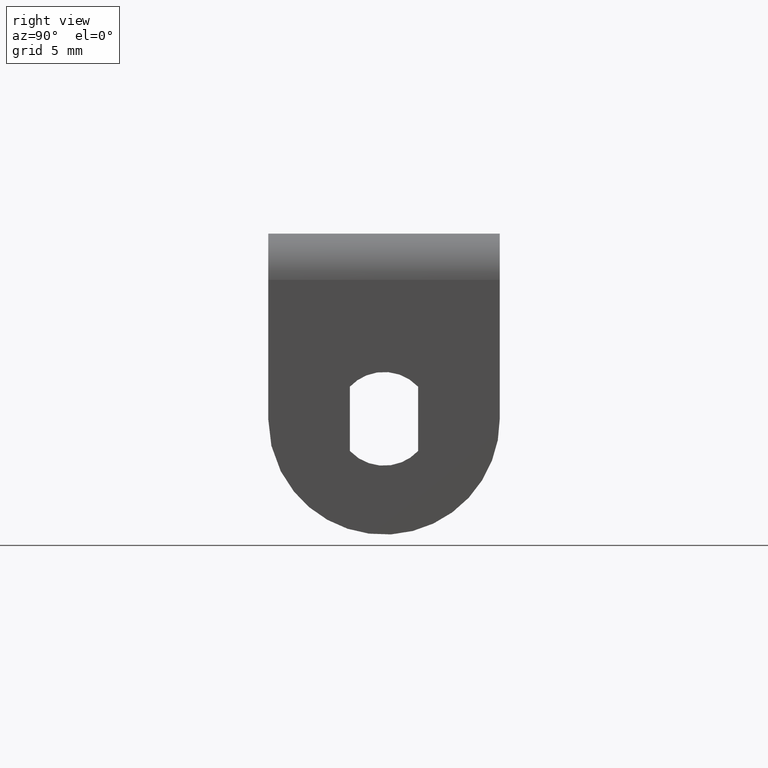
[diagram: clean part render]
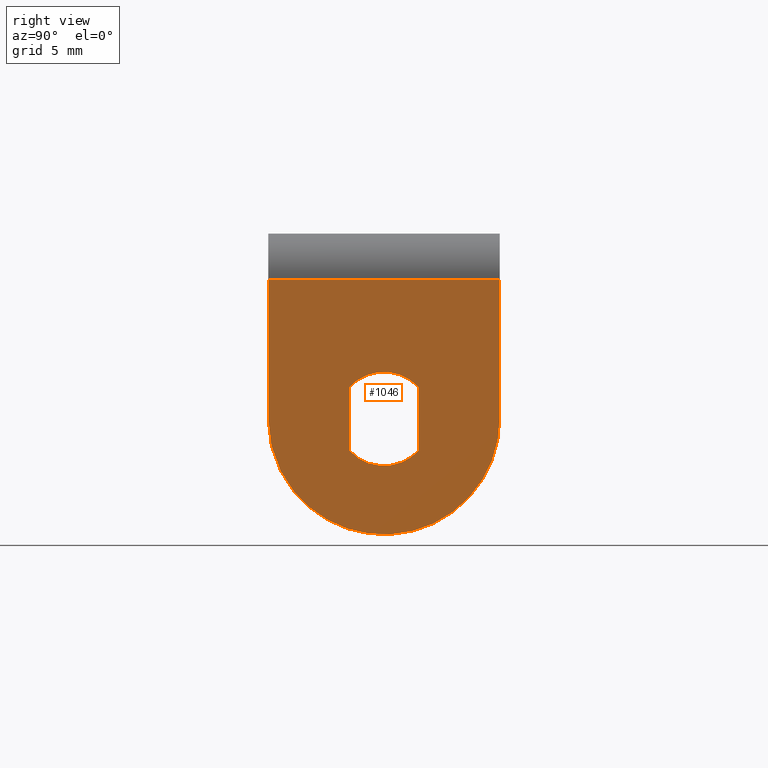
[diagram: same view with one face highlighted and labeled with its STEP entity id]
A machine part, right view. The second image highlights one B-rep face of the part: STEP entity #1046.
In plain terms, the highlighted face is a freeform B-spline surface patch.
Its self-contained STEP definition (entity closure, byte-faithful):
#659=CARTESIAN_POINT('',(0.0,-1.475000000000080,1.387443692551104));
#660=VERTEX_POINT('',#659);
#666=CARTESIAN_POINT('',(0.0,-1.475000000000080,-1.387443692551102));
#667=VERTEX_POINT('',#666);
#668=CARTESIAN_POINT('',(0.0,-1.475000000000080,1.387443692551104));
#669=CARTESIAN_POINT('',(0.0,-1.475000000000080,-1.387443692551102));
#670=QUASI_UNIFORM_CURVE('',1,(#668,#669),.UNSPECIFIED.,.F.,.U.);
#671=EDGE_CURVE('',#660,#667,#670,.T.);
#696=CARTESIAN_POINT('',(0.0,1.474999999999910,1.387443692550988));
#697=VERTEX_POINT('',#696);
#703=CARTESIAN_POINT('',(0.0,1.474999999999910,1.387443692550988));
#704=CARTESIAN_POINT('',(0.0,1.380670494113556,1.487754335689962));
#705=CARTESIAN_POINT('',(0.0,1.217201352177897,1.629348577602691));
#706=CARTESIAN_POINT('',(0.0,0.902101189674611,1.824571535563073));
#707=CARTESIAN_POINT('',(0.0,0.572594252538537,1.957131040315841));
#708=CARTESIAN_POINT('',(0.0,0.198452724673971,2.024606629939703));
#709=CARTESIAN_POINT('',(0.0,-0.138136115437624,2.028900425362896));
#710=CARTESIAN_POINT('',(0.0,-0.420049765506036,1.987262036304930));
#711=CARTESIAN_POINT('',(0.0,-0.726434035424657,1.899006509463014));
#712=CARTESIAN_POINT('',(0.0,-1.087573258639210,1.731872807022510));
#713=CARTESIAN_POINT('',(0.0,-1.345326968082001,1.525406492633100));
#714=CARTESIAN_POINT('',(0.0,-1.475000000000080,1.387443692551104));
#715=B_SPLINE_CURVE_WITH_KNOTS('',3,(#703,#704,#705,#706,#707,#708,#709,#710,#711,#712,#713,#714),.UNSPECIFIED.,.F.,.U.,(4,1,1,1,1,1,1,1,1,4),(0.000000022159004,0.413086376242160,0.645452178341382,1.110186247197694,1.471639036251949,1.781447523393023,2.117090264590202,2.323634236006428,2.736730945053143,3.304727559538897),.UNSPECIFIED.);
#716=EDGE_CURVE('',#697,#660,#715,.T.);
#728=CARTESIAN_POINT('',(0.0,1.474999999999910,-1.387443692551102));
#729=VERTEX_POINT('',#728);
#735=CARTESIAN_POINT('',(0.0,1.474999999999910,-1.387443692551102));
#736=CARTESIAN_POINT('',(0.0,1.474999999999910,1.387443692550988));
#737=QUASI_UNIFORM_CURVE('',1,(#735,#736),.UNSPECIFIED.,.F.,.U.);
#738=EDGE_CURVE('',#729,#697,#737,.T.);
#760=CARTESIAN_POINT('',(0.0,-1.475000000000080,-1.387443692551102));
#761=CARTESIAN_POINT('',(0.0,-1.327668950976536,-1.544252504671867));
#762=CARTESIAN_POINT('',(0.0,-1.030702136118029,-1.772856329635306));
#763=CARTESIAN_POINT('',(0.0,-0.572592008330545,-1.957128823236188));
#764=CARTESIAN_POINT('',(0.0,-0.198452896217103,-2.024607567414855));
#765=CARTESIAN_POINT('',(0.0,0.155397433907739,-2.029124348193056));
#766=CARTESIAN_POINT('',(0.0,0.479755719843479,-1.976988075974650));
#767=CARTESIAN_POINT('',(0.0,0.823125155314828,-1.861251939156080));
#768=CARTESIAN_POINT('',(0.0,1.157670297451027,-1.679690964550267));
#769=CARTESIAN_POINT('',(0.0,1.374775347015647,-1.494023766857396));
#770=CARTESIAN_POINT('',(0.0,1.474999999999910,-1.387443692551102));
#771=B_SPLINE_CURVE_WITH_KNOTS('',3,(#760,#761,#762,#763,#764,#765,#766,#767,#768,#769,#770),.UNSPECIFIED.,.F.,.U.,(4,1,1,1,1,1,1,1,4),(0.000000022158772,0.645452178341201,1.110186247197551,1.471639036251836,1.781447523392933,2.168723287016878,2.452727092234080,2.865822358041922,3.304727559538871),.UNSPECIFIED.);
#772=EDGE_CURVE('',#667,#729,#771,.T.);
#832=CARTESIAN_POINT('',(0.0,4.999999999999890,6.0));
#833=VERTEX_POINT('',#832);
#854=CARTESIAN_POINT('',(0.0,-5.000000000000290,6.0));
#855=VERTEX_POINT('',#854);
#869=CARTESIAN_POINT('',(0.0,4.999999999999890,6.0));
#870=CARTESIAN_POINT('',(0.0,-5.000000000000290,6.0));
#871=QUASI_UNIFORM_CURVE('',1,(#869,#870),.UNSPECIFIED.,.F.,.U.);
#872=EDGE_CURVE('',#833,#855,#871,.T.);
#912=CARTESIAN_POINT('',(0.0,4.999999999999920,0.000000872664625));
#913=VERTEX_POINT('',#912);
#919=CARTESIAN_POINT('',(0.0,-5.000000000000290,-3.061516E-016));
#920=VERTEX_POINT('',#919);
#921=CARTESIAN_POINT('',(0.0,-5.000000000000290,-3.061516E-016));
#922=CARTESIAN_POINT('',(0.0,-5.000009099920339,-0.235207009468813));
#923=CARTESIAN_POINT('',(0.0,-4.966025920176181,-0.715849755872234));
#924=CARTESIAN_POINT('',(0.0,-4.815249924251384,-1.407144258192211));
#925=CARTESIAN_POINT('',(0.0,-4.558113566024446,-2.098893395265583));
#926=CARTESIAN_POINT('',(0.0,-4.157455357743960,-2.826925668638566));
#927=CARTESIAN_POINT('',(0.0,-3.657223545374245,-3.440287277969798));
#928=CARTESIAN_POINT('',(0.0,-3.107751604601202,-3.932125083656868));
#929=CARTESIAN_POINT('',(0.0,-2.528416142578831,-4.337529861590435));
#930=CARTESIAN_POINT('',(0.0,-1.790072712439315,-4.697897794141976));
#931=CARTESIAN_POINT('',(0.0,-0.890384551534412,-4.949861066081613));
#932=CARTESIAN_POINT('',(0.0,-0.040628222281704,-5.023029462005174));
#933=CARTESIAN_POINT('',(0.0,0.735890038700142,-4.960924257601769));
#934=CARTESIAN_POINT('',(0.0,1.326737728941753,-4.832044724629513));
#935=CARTESIAN_POINT('',(0.0,1.908181639721170,-4.634006763696986));
#936=CARTESIAN_POINT('',(0.0,2.491199262031098,-4.356086544625296));
#937=CARTESIAN_POINT('',(0.0,3.061398746851376,-3.972542066756692));
#938=CARTESIAN_POINT('',(0.0,3.551202844321763,-3.536748502593613));
#939=CARTESIAN_POINT('',(0.0,3.931273343211799,-3.106915774809114));
#940=CARTESIAN_POINT('',(0.0,4.295277171817269,-2.586707716696024));
#941=CARTESIAN_POINT('',(0.0,4.570857797496823,-2.059506170925269));
#942=CARTESIAN_POINT('',(0.0,4.802744127919879,-1.435679069689365));
#943=CARTESIAN_POINT('',(0.0,4.959117961496081,-0.777209751555647));
#944=CARTESIAN_POINT('',(0.0,5.000016150060175,-0.265888778238019));
#945=CARTESIAN_POINT('',(0.0,4.999999999999920,0.000000872664625));
#946=B_SPLINE_CURVE_WITH_KNOTS('',3,(#921,#922,#923,#924,#925,#926,#927,#928,#929,#930,#931,#932,#933,#934,#935,#936,#937,#938,#939,#940,#941,#942,#943,#944,#945),.UNSPECIFIED.,.F.,.U.,(4,1,1,1,1,1,1,1,1,1,1,1,1,1,1,1,1,1,1,1,1,1,4),(0.000000041431571,0.705621012969976,1.441937853951801,2.116896966214164,2.914569094510604,3.927005285180279,4.479232491351210,5.123518012526954,6.043892555297452,6.933603155984899,7.915354075980583,8.590310674681671,9.265267720908264,9.725457580433311,10.431092105586661,11.198067297053161,11.780983722337281,12.394584247774549,12.916138187023270,13.683131451389080,14.174007337957260,14.910321362527901,15.707988781856320),.UNSPECIFIED.);
#947=EDGE_CURVE('',#920,#913,#946,.T.);
#971=CARTESIAN_POINT('',(0.0,-5.000000000000290,6.0));
#972=CARTESIAN_POINT('',(0.0,-5.000000000000290,-3.061516E-016));
#973=QUASI_UNIFORM_CURVE('',1,(#971,#972),.UNSPECIFIED.,.F.,.U.);
#974=EDGE_CURVE('',#855,#920,#973,.T.);
#1019=CARTESIAN_POINT('',(0.0,4.999999999999920,0.000000872664625));
#1020=CARTESIAN_POINT('',(0.0,4.999999999999890,6.0));
#1021=QUASI_UNIFORM_CURVE('',1,(#1019,#1020),.UNSPECIFIED.,.F.,.U.);
#1022=EDGE_CURVE('',#913,#833,#1021,.T.);
#1029=CARTESIAN_POINT('',(0.0,-5.499499980618361,6.549449978679864));
#1030=CARTESIAN_POINT('',(0.0,5.499500248838891,6.549449978679864));
#1031=CARTESIAN_POINT('',(0.0,-5.499499980618361,-5.549450273722811));
#1032=CARTESIAN_POINT('',(0.0,5.499500248838891,-5.549450273722811));
#1033=B_SPLINE_SURFACE_WITH_KNOTS('',1,1,((#1029,#1031),(#1030,#1032)),.UNSPECIFIED.,.F.,.F.,.U.,(2,2),(2,2),(0.0,10.999000229457250),(0.0,12.098900252402681),.UNSPECIFIED.);
#1034=ORIENTED_EDGE('',*,*,#1022,.T.);
#1035=ORIENTED_EDGE('',*,*,#872,.T.);
#1036=ORIENTED_EDGE('',*,*,#974,.T.);
#1037=ORIENTED_EDGE('',*,*,#947,.T.);
#1038=EDGE_LOOP('',(#1034,#1035,#1036,#1037));
#1039=FACE_OUTER_BOUND('',#1038,.T.);
#1040=ORIENTED_EDGE('',*,*,#738,.F.);
#1041=ORIENTED_EDGE('',*,*,#772,.F.);
#1042=ORIENTED_EDGE('',*,*,#671,.F.);
#1043=ORIENTED_EDGE('',*,*,#716,.F.);
#1044=EDGE_LOOP('',(#1040,#1041,#1042,#1043));
#1045=FACE_BOUND('',#1044,.T.);
#1046=ADVANCED_FACE('',(#1039,#1045),#1033,.F.);